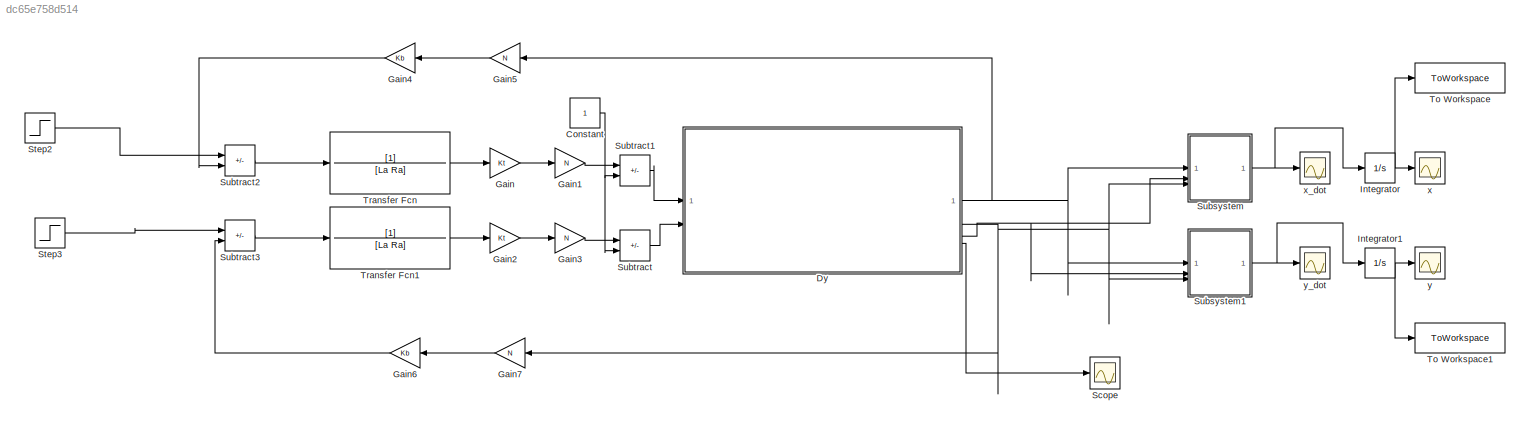
MODEL slx_dc65e758d514
KIND model
CONFIG AbsTol = auto
CONFIG EnableMultiTasking = off
CONFIG FixedStep = auto
CONFIG MaxStep = auto
CONFIG MinStep = auto
CONFIG RelTol = 1e-3
CONFIG SampleTimeConstraint = Unconstrained
CONFIG SolverName = VariableStepAuto
CONFIG StartTime = 0.0
CONFIG StopTime = 500
BLOCK [Constant] Constant
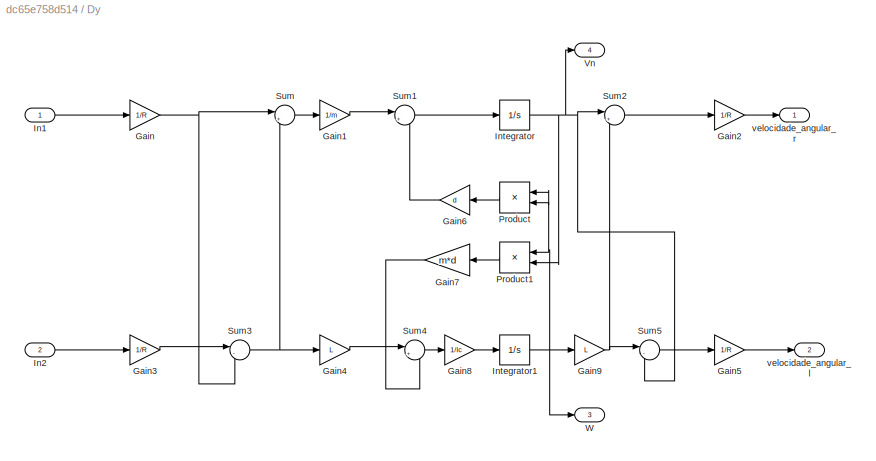
BLOCK [SubSystem] Dy
BLOCK [Gain] Dy/Gain
  Gain = 1/R
BLOCK [Gain] Dy/Gain1
  Gain = 1/m
BLOCK [Gain] Dy/Gain2
  Gain = 1/R
BLOCK [Gain] Dy/Gain3
  Gain = 1/R
BLOCK [Gain] Dy/Gain4
  Gain = L
BLOCK [Gain] Dy/Gain5
  Gain = 1/R
BLOCK [Gain] Dy/Gain6
  Gain = d
  NameLocation = top
BLOCK [Gain] Dy/Gain7
  Gain = m*d
  NameLocation = top
BLOCK [Gain] Dy/Gain8
  Gain = 1/Ic
BLOCK [Gain] Dy/Gain9
  Gain = L
BLOCK [Inport] Dy/In1
BLOCK [Inport] Dy/In2
  Port = 2
BLOCK [Integrator] Dy/Integrator
BLOCK [Integrator] Dy/Integrator1
BLOCK [Product] Dy/Product
  NameLocation = top
BLOCK [Product] Dy/Product1
  NameLocation = top
BLOCK [Sum] Dy/Sum
  Inputs = |++
BLOCK [Sum] Dy/Sum1
  Inputs = |++
BLOCK [Sum] Dy/Sum2
  Inputs = |++
BLOCK [Sum] Dy/Sum3
  Inputs = |-+
BLOCK [Sum] Dy/Sum4
  Inputs = |+-
BLOCK [Sum] Dy/Sum5
  Inputs = |-+
BLOCK [Outport] Dy/Vn
  Port = 4
BLOCK [Outport] Dy/W
  Port = 3
BLOCK [Outport] Dy/velocidade_angular_l
  Port = 2
BLOCK [Outport] Dy/velocidade_angular_r
BLOCK [Gain] Gain
  Gain = Kt
BLOCK [Gain] Gain1
  Gain = N
BLOCK [Gain] Gain2
  Gain = Kt
BLOCK [Gain] Gain3
  Gain = N
BLOCK [Gain] Gain4
  Gain = Kb
  NameLocation = top
BLOCK [Gain] Gain5
  Gain = N
  NameLocation = top
BLOCK [Gain] Gain6
  Gain = Kb
  NameLocation = top
BLOCK [Gain] Gain7
  Gain = N
  NameLocation = top
BLOCK [Integrator] Integrator
BLOCK [Integrator] Integrator1
BLOCK [Scope] Scope
  Floating = off
  NumInputPorts = 1
  ScopeSpecificationString = Simulink.scopes.TimeScopeBlockCfg('CurrentConfiguration', extmgr.ConfigurationSet(extmgr.Configuration('Core','General UI',true),extmgr.Configuration('Core','Source UI',true),extmgr.Configuration('Sources','WiredSimulink',true,'DataLoggingVariableName','ScopeData1'),extmgr.Configuration('Visuals','Time Domain',true,'SerializedDisplays',{struct('MinYLimReal','-0.12951','MaxYLimReal','1.16546','YLab...<+1363ch>
BLOCK [Step] Step2
  After = 5
  Before = 10
  SampleTime = 0
BLOCK [Step] Step3
  After = 8
  Before = 10
  SampleTime = 0
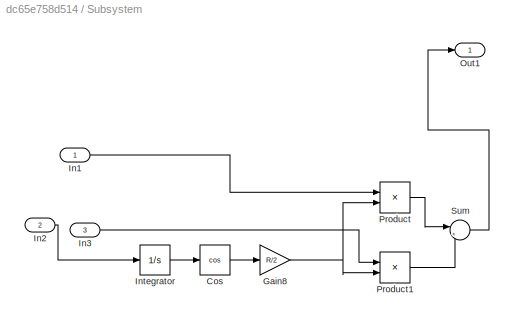
BLOCK [SubSystem] Subsystem
BLOCK [Trigonometry] Subsystem/Cos
  Operator = cos
BLOCK [Gain] Subsystem/Gain8
  Gain = R/2
BLOCK [Inport] Subsystem/In1
BLOCK [Inport] Subsystem/In2
  Port = 2
BLOCK [Inport] Subsystem/In3
  Port = 3
BLOCK [Integrator] Subsystem/Integrator
BLOCK [Outport] Subsystem/Out1
BLOCK [Product] Subsystem/Product
BLOCK [Product] Subsystem/Product1
BLOCK [Sum] Subsystem/Sum
  Inputs = |++
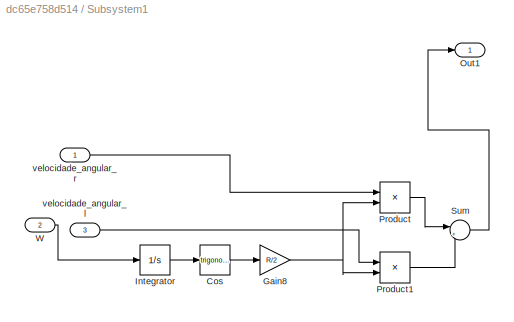
BLOCK [SubSystem] Subsystem1
BLOCK [Trigonometry] Subsystem1/Cos
BLOCK [Gain] Subsystem1/Gain8
  Gain = R/2
BLOCK [Integrator] Subsystem1/Integrator
BLOCK [Outport] Subsystem1/Out1
BLOCK [Product] Subsystem1/Product
BLOCK [Product] Subsystem1/Product1
BLOCK [Sum] Subsystem1/Sum
  Inputs = |++
BLOCK [Inport] Subsystem1/W
  Port = 2
BLOCK [Inport] Subsystem1/velocidade_angular_l
  Port = 3
BLOCK [Inport] Subsystem1/velocidade_angular_r
BLOCK [Sum] Subtract
  IconShape = rectangular
  Inputs = +-
BLOCK [Sum] Subtract1
  IconShape = rectangular
  Inputs = +-
BLOCK [Sum] Subtract2
  IconShape = rectangular
  Inputs = +-
BLOCK [Sum] Subtract3
  IconShape = rectangular
  Inputs = +-
BLOCK [ToWorkspace] To Workspace
  FixptAsFi = on
  MaxDataPoints = inf
  SampleTime = -1
  SaveFormat = Structure With Time
  VariableName = x
BLOCK [ToWorkspace] To Workspace1
  FixptAsFi = on
  MaxDataPoints = inf
  SampleTime = -1
  SaveFormat = Structure With Time
  VariableName = y
BLOCK [TransferFcn] Transfer Fcn
  Denominator = [La Ra]
BLOCK [TransferFcn] Transfer Fcn1
  Denominator = [La Ra]
BLOCK [Scope] x
  Floating = off
  NumInputPorts = 1
  ScopeSpecificationString = Simulink.scopes.TimeScopeBlockCfg('CurrentConfiguration', extmgr.ConfigurationSet(extmgr.Configuration('Core','General UI',true),extmgr.Configuration('Core','Source UI',true),extmgr.Configuration('Sources','WiredSimulink',true,'DataLoggingVariableName','ScopeData3'),extmgr.Configuration('Visuals','Time Domain',true,'SerializedDisplays',{struct('MinYLimReal','-0.20362','MaxYLimReal','1.83261','YLab...<+1398ch>
BLOCK [Scope] x_dot
  Floating = off
  NumInputPorts = 1
  ScopeSpecificationString = Simulink.scopes.TimeScopeBlockCfg('CurrentConfiguration', extmgr.ConfigurationSet(extmgr.Configuration('Core','General UI',true),extmgr.Configuration('Core','Source UI',true),extmgr.Configuration('Sources','WiredSimulink',true),extmgr.Configuration('Visuals','Time Domain',true,'SerializedDisplays',{struct('MinYLimReal','-0.83443','MaxYLimReal','1.24378','YLabelReal','','MinYLimMag','0.00000','MaxY...<+1358ch>
BLOCK [Scope] y
  Floating = off
  NumInputPorts = 1
  ScopeSpecificationString = Simulink.scopes.TimeScopeBlockCfg('CurrentConfiguration', extmgr.ConfigurationSet(extmgr.Configuration('Core','General UI',true),extmgr.Configuration('Core','Source UI',true),extmgr.Configuration('Sources','WiredSimulink',true,'DataLoggingVariableName','ScopeData4'),extmgr.Configuration('Visuals','Time Domain',true,'SerializedDisplays',{struct('MinYLimReal','-1.48805','MaxYLimReal','0.16534','YLab...<+1399ch>
BLOCK [Scope] y_dot
  Floating = off
  NumInputPorts = 1
  ScopeSpecificationString = Simulink.scopes.TimeScopeBlockCfg('CurrentConfiguration', extmgr.ConfigurationSet(extmgr.Configuration('Core','General UI',true),extmgr.Configuration('Core','Source UI',true),extmgr.Configuration('Sources','WiredSimulink',true,'DataLoggingVariableName','ScopeData2'),extmgr.Configuration('Visuals','Time Domain',true,'SerializedDisplays',{struct('MinYLimReal','-0.78327','MaxYLimReal','0.78327','YLab...<+1369ch>
NET Constant:1 -> Subtract1:2, Subtract:2
LINE Dy/Gain1:1 -> Dy/Sum1:1
LINE Dy/Gain2:1 -> Dy/velocidade_angular_r:1
LINE Dy/Gain3:1 -> Dy/Sum3:1
LINE Dy/Gain4:1 -> Dy/Sum4:1
LINE Dy/Gain5:1 -> Dy/velocidade_angular_l:1
LINE Dy/Gain6:1 -> Dy/Sum1:2
LINE Dy/Gain7:1 -> Dy/Sum4:2
LINE Dy/Gain8:1 -> Dy/Integrator1:1
NET Dy/Gain9:1 -> Dy/Sum2:2, Dy/Sum5:1
NET Dy/Gain:1 -> Dy/Sum3:2, Dy/Sum:1
LINE Dy/In1:1 -> Dy/Gain:1
LINE Dy/In2:1 -> Dy/Gain3:1
NET Dy/Integrator1:1 -> Dy/Gain9:1, Dy/Product1:1, Dy/Product:1, Dy/Product:2, Dy/W:1
NET Dy/Integrator:1 -> Dy/Product1:2, Dy/Sum2:1, Dy/Sum5:2, Dy/Vn:1
LINE Dy/Product1:1 -> Dy/Gain7:1
LINE Dy/Product:1 -> Dy/Gain6:1
LINE Dy/Sum1:1 -> Dy/Integrator:1
LINE Dy/Sum2:1 -> Dy/Gain2:1
NET Dy/Sum3:1 -> Dy/Gain4:1, Dy/Sum:2
LINE Dy/Sum4:1 -> Dy/Gain8:1
LINE Dy/Sum5:1 -> Dy/Gain5:1
LINE Dy/Sum:1 -> Dy/Gain1:1
NET Dy:1 -> Gain5:1, Subsystem1:1, Subsystem:1
NET Dy:2 -> Gain7:1, Subsystem1:3, Subsystem:3
NET Dy:3 -> Subsystem1:2, Subsystem:2
LINE Dy:4 -> Scope:1
LINE Gain1:1 -> Subtract1:1
LINE Gain2:1 -> Gain3:1
LINE Gain3:1 -> Subtract:1
LINE Gain4:1 -> Subtract2:2
LINE Gain5:1 -> Gain4:1
LINE Gain6:1 -> Subtract3:2
LINE Gain7:1 -> Gain6:1
LINE Gain:1 -> Gain1:1
NET Integrator1:1 -> To Workspace1:1, y:1
NET Integrator:1 -> To Workspace:1, x:1
LINE Step2:1 -> Subtract2:1
LINE Step3:1 -> Subtract3:1
LINE Subsystem/Cos:1 -> Subsystem/Gain8:1
NET Subsystem/Gain8:1 -> Subsystem/Product1:2, Subsystem/Product:2
LINE Subsystem/In1:1 -> Subsystem/Product:1
LINE Subsystem/In2:1 -> Subsystem/Integrator:1
LINE Subsystem/In3:1 -> Subsystem/Product1:1
LINE Subsystem/Integrator:1 -> Subsystem/Cos:1
LINE Subsystem/Product1:1 -> Subsystem/Sum:2
LINE Subsystem/Product:1 -> Subsystem/Sum:1
LINE Subsystem/Sum:1 -> Subsystem/Out1:1
LINE Subsystem1/Cos:1 -> Subsystem1/Gain8:1
NET Subsystem1/Gain8:1 -> Subsystem1/Product1:2, Subsystem1/Product:2
LINE Subsystem1/Integrator:1 -> Subsystem1/Cos:1
LINE Subsystem1/Product1:1 -> Subsystem1/Sum:2
LINE Subsystem1/Product:1 -> Subsystem1/Sum:1
LINE Subsystem1/Sum:1 -> Subsystem1/Out1:1
LINE Subsystem1/W:1 -> Subsystem1/Integrator:1
LINE Subsystem1/velocidade_angular_l:1 -> Subsystem1/Product1:1
LINE Subsystem1/velocidade_angular_r:1 -> Subsystem1/Product:1
NET Subsystem1:1 -> Integrator1:1, y_dot:1
NET Subsystem:1 -> Integrator:1, x_dot:1
LINE Subtract1:1 -> Dy:1
LINE Subtract2:1 -> Transfer Fcn:1
LINE Subtract3:1 -> Transfer Fcn1:1
LINE Subtract:1 -> Dy:2
LINE Transfer Fcn1:1 -> Gain2:1
LINE Transfer Fcn:1 -> Gain:1
note: NET lines group one-source signal fan-out (src -> all destinations, sorted); 1:1 wires keep LINE
